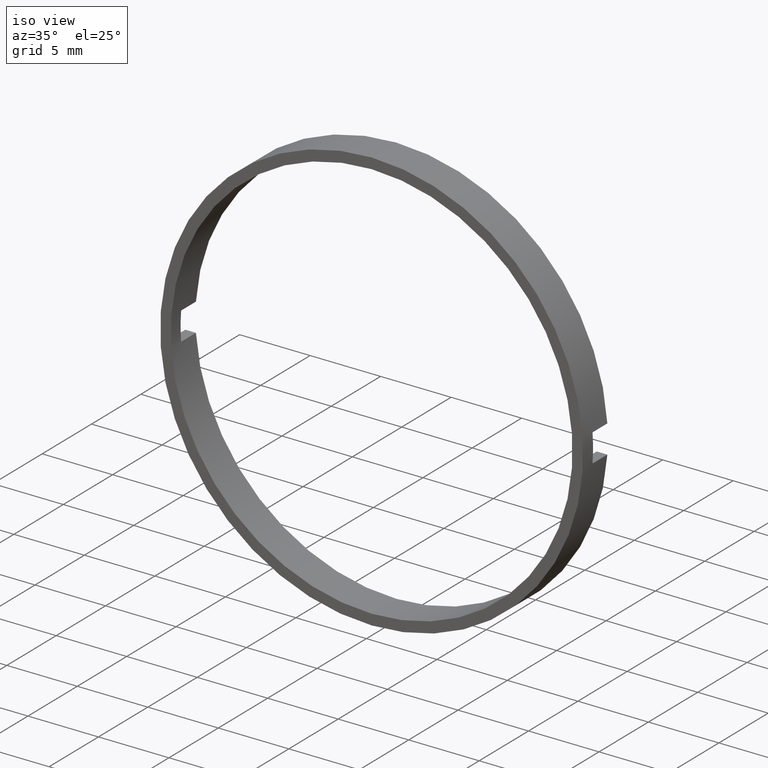
[diagram: clean part render]
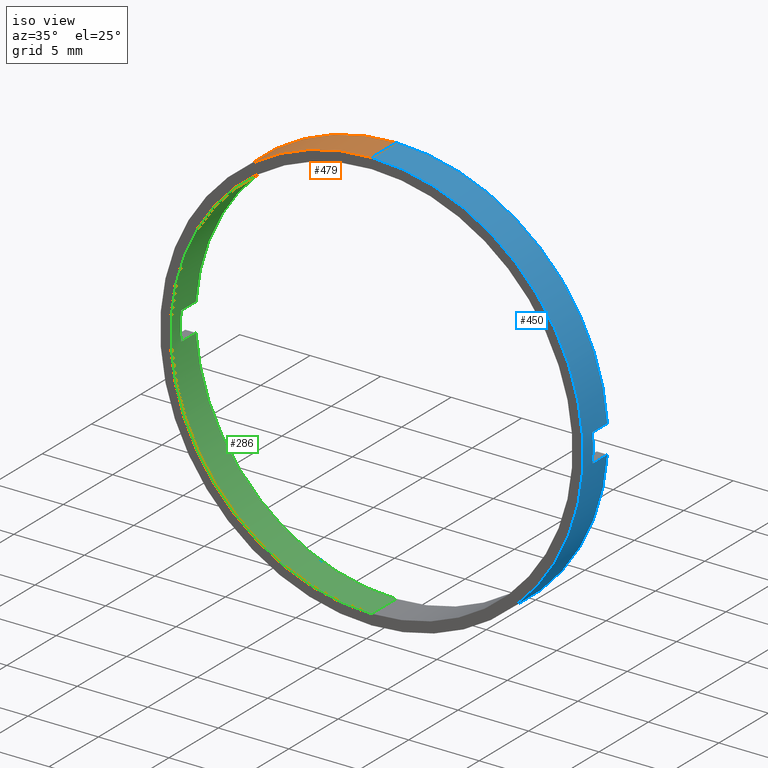
[diagram: same view with three faces highlighted in distinct colors, each labeled with its STEP entity id]
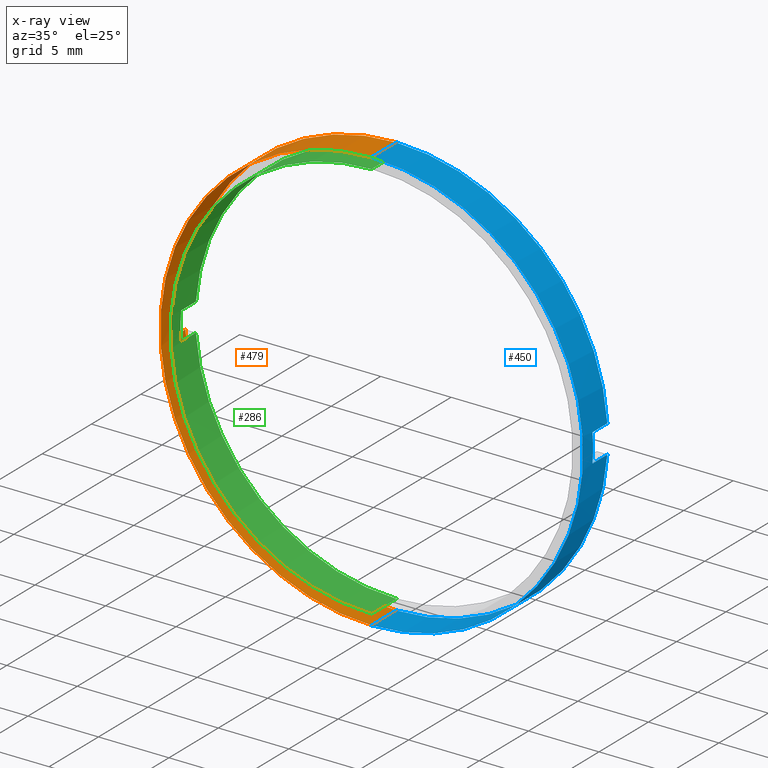
[diagram: x-ray of the same camera — body ghosted, the three highlighted faces saturated]
A machine part, iso view with three faces highlighted in distinct colors.
The next image is the same camera in x-ray (body ghosted, the three faces saturated) — at least one of them is partly hidden behind the body in this view.
Their STEP definitions:

[orange] entity #479 — the highlighted cylindrical surface (partial cylindrical patch) has radius 15 mm, axis along (-0, 1, -0).
#1 = EDGE_CURVE ( 'NONE', #409, #463, #205, .T. ) ;
#2 = AXIS2_PLACEMENT_3D ( 'NONE', #132, #398, #504 ) ;
#37 = CARTESIAN_POINT ( 'NONE',  ( -14.96662954709577100, -3.464249787179428400, -0.9999999999999995600 ) ) ;
#56 = EDGE_CURVE ( 'NONE', #365, #308, #433, .T. ) ;
#64 = DIRECTION ( 'NONE',  ( -0.0000000000000000000, 1.000000000000000000, -0.0000000000000000000 ) ) ;
#74 = ORIENTED_EDGE ( 'NONE', *, *, #110, .F. ) ;
#83 = ORIENTED_EDGE ( 'NONE', *, *, #301, .F. ) ;
#87 = DIRECTION ( 'NONE',  ( 0.0000000000000000000, -1.000000000000000000, 0.0000000000000000000 ) ) ;
#105 = DIRECTION ( 'NONE',  ( 0.0000000000000000000, 0.0000000000000000000, 1.000000000000000000 ) ) ;
#109 = DIRECTION ( 'NONE',  ( -0.0000000000000000000, 1.000000000000000000, -0.0000000000000000000 ) ) ;
#110 = EDGE_CURVE ( 'NONE', #339, #454, #143, .T. ) ;
#118 = LINE ( 'NONE', #208, #417 ) ;
#132 = CARTESIAN_POINT ( 'NONE',  ( 0.0000000000000000000, -4.464249787179428900, 0.0000000000000000000 ) ) ;
#140 = CARTESIAN_POINT ( 'NONE',  ( 0.0000000000000000000, -1.964249787179434000, 15.00000000000000700 ) ) ;
#143 = CIRCLE ( 'NONE', #419, 15.00000000000000700 ) ;
#146 = DIRECTION ( 'NONE',  ( -0.0000000000000000000, 1.000000000000000000, -0.0000000000000000000 ) ) ;
#153 = CARTESIAN_POINT ( 'NONE',  ( 1.836970198721030800E-015, 56.26084262701361600, -15.00000000000000700 ) ) ;
#157 = VERTEX_POINT ( 'NONE', #309 ) ;
#160 = CIRCLE ( 'NONE', #271, 15.00000000000000700 ) ;
#161 = EDGE_CURVE ( 'NONE', #365, #454, #341, .T. ) ;
#163 = DIRECTION ( 'NONE',  ( 0.0000000000000000000, 0.0000000000000000000, 1.000000000000000000 ) ) ;
#192 = EDGE_CURVE ( 'NONE', #339, #498, #202, .T. ) ;
#199 = VECTOR ( 'NONE', #109, 1000.000000000000000 ) ;
#201 = CARTESIAN_POINT ( 'NONE',  ( 0.0000000000000000000, -3.464249787179428400, 0.0000000000000000000 ) ) ;
#202 = LINE ( 'NONE', #373, #231 ) ;
#205 = CIRCLE ( 'NONE', #2, 15.00000000000000700 ) ;
#207 = CARTESIAN_POINT ( 'NONE',  ( -14.96662954709577100, -3.464249787179428400, 0.9999999999999995600 ) ) ;
#208 = CARTESIAN_POINT ( 'NONE',  ( 0.0000000000000000000, 56.26084262701361600, 15.00000000000000700 ) ) ;
#210 = CARTESIAN_POINT ( 'NONE',  ( -14.96662954709577600, -1.964249787179430900, -1.000000000000000000 ) ) ;
#213 = DIRECTION ( 'NONE',  ( -0.0000000000000000000, 1.000000000000000000, -0.0000000000000000000 ) ) ;
#231 = VECTOR ( 'NONE', #64, 1000.000000000000000 ) ;
#246 = DIRECTION ( 'NONE',  ( 0.0000000000000000000, 0.0000000000000000000, 1.000000000000000000 ) ) ;
#249 = DIRECTION ( 'NONE',  ( -0.0000000000000000000, 1.000000000000000000, -0.0000000000000000000 ) ) ;
#251 = CARTESIAN_POINT ( 'NONE',  ( 1.836970198721030800E-015, -4.464249787179428900, -15.00000000000000700 ) ) ;
#269 = CYLINDRICAL_SURFACE ( 'NONE', #331, 15.00000000000000700 ) ;
#271 = AXIS2_PLACEMENT_3D ( 'NONE', #323, #146, #105 ) ;
#273 = CARTESIAN_POINT ( 'NONE',  ( 0.0000000000000000000, -1.964249787179434000, 0.0000000000000000000 ) ) ;
#298 = ORIENTED_EDGE ( 'NONE', *, *, #386, .T. ) ;
#300 = EDGE_LOOP ( 'NONE', ( #304, #429, #298, #393, #383, #74, #506, #83 ) ) ;
#301 = EDGE_CURVE ( 'NONE', #157, #498, #160, .T. ) ;
#304 = ORIENTED_EDGE ( 'NONE', *, *, #382, .F. ) ;
#307 = DIRECTION ( 'NONE',  ( 0.0000000000000000000, 0.0000000000000000000, 1.000000000000000000 ) ) ;
#308 = VERTEX_POINT ( 'NONE', #140 ) ;
#309 = CARTESIAN_POINT ( 'NONE',  ( 1.836970198721030800E-015, -1.964249787179434000, -15.00000000000000700 ) ) ;
#320 = LINE ( 'NONE', #153, #199 ) ;
#323 = CARTESIAN_POINT ( 'NONE',  ( 0.0000000000000000000, -1.964249787179434000, 0.0000000000000000000 ) ) ;
#331 = AXIS2_PLACEMENT_3D ( 'NONE', #397, #249, #246 ) ;
#339 = VERTEX_POINT ( 'NONE', #37 ) ;
#341 = LINE ( 'NONE', #437, #464 ) ;
#365 = VERTEX_POINT ( 'NONE', #499 ) ;
#373 = CARTESIAN_POINT ( 'NONE',  ( -14.96662954709577200, 56.26084262701361600, -1.000000000000000000 ) ) ;
#382 = EDGE_CURVE ( 'NONE', #409, #157, #320, .T. ) ;
#383 = ORIENTED_EDGE ( 'NONE', *, *, #161, .T. ) ;
#386 = EDGE_CURVE ( 'NONE', #463, #308, #118, .T. ) ;
#392 = DIRECTION ( 'NONE',  ( 0.0000000000000000000, 1.000000000000000000, 0.0000000000000000000 ) ) ;
#393 = ORIENTED_EDGE ( 'NONE', *, *, #56, .F. ) ;
#394 = FACE_OUTER_BOUND ( 'NONE', #300, .T. ) ;
#397 = CARTESIAN_POINT ( 'NONE',  ( 0.0000000000000000000, 56.26084262701361600, 0.0000000000000000000 ) ) ;
#398 = DIRECTION ( 'NONE',  ( -0.0000000000000000000, 1.000000000000000000, -0.0000000000000000000 ) ) ;
#401 = CARTESIAN_POINT ( 'NONE',  ( 0.0000000000000000000, -4.464249787179428900, 15.00000000000000700 ) ) ;
#409 = VERTEX_POINT ( 'NONE', #251 ) ;
#417 = VECTOR ( 'NONE', #213, 1000.000000000000000 ) ;
#419 = AXIS2_PLACEMENT_3D ( 'NONE', #201, #392, #307 ) ;
#429 = ORIENTED_EDGE ( 'NONE', *, *, #1, .T. ) ;
#431 = DIRECTION ( 'NONE',  ( -0.0000000000000000000, 1.000000000000000000, -0.0000000000000000000 ) ) ;
#433 = CIRCLE ( 'NONE', #461, 15.00000000000000700 ) ;
#437 = CARTESIAN_POINT ( 'NONE',  ( -14.96662954709577200, 56.26084262701361600, 1.000000000000000000 ) ) ;
#454 = VERTEX_POINT ( 'NONE', #207 ) ;
#461 = AXIS2_PLACEMENT_3D ( 'NONE', #273, #431, #163 ) ;
#463 = VERTEX_POINT ( 'NONE', #401 ) ;
#464 = VECTOR ( 'NONE', #87, 1000.000000000000000 ) ;
#479 = ADVANCED_FACE ( 'NONE', ( #394 ), #269, .T. ) ;
#498 = VERTEX_POINT ( 'NONE', #210 ) ;
#499 = CARTESIAN_POINT ( 'NONE',  ( -14.96662954709577600, -1.964249787179430900, 1.000000000000000000 ) ) ;
#504 = DIRECTION ( 'NONE',  ( 0.0000000000000000000, 0.0000000000000000000, 1.000000000000000000 ) ) ;
#506 = ORIENTED_EDGE ( 'NONE', *, *, #192, .T. ) ;

[blue] entity #450 — the highlighted cylindrical surface (partial cylindrical patch) has radius 15 mm, axis along (-0, 1, -0).
#11 = CARTESIAN_POINT ( 'NONE',  ( 14.96662954709577200, 56.26084262701361600, 1.000000000000000000 ) ) ;
#23 = VERTEX_POINT ( 'NONE', #315 ) ;
#25 = DIRECTION ( 'NONE',  ( 0.0000000000000000000, 1.000000000000000000, 0.0000000000000000000 ) ) ;
#26 = VECTOR ( 'NONE', #280, 1000.000000000000000 ) ;
#34 = EDGE_CURVE ( 'NONE', #463, #409, #164, .T. ) ;
#44 = CIRCLE ( 'NONE', #57, 15.00000000000000700 ) ;
#52 = DIRECTION ( 'NONE',  ( 0.0000000000000000000, 0.0000000000000000000, 1.000000000000000000 ) ) ;
#57 = AXIS2_PLACEMENT_3D ( 'NONE', #334, #359, #52 ) ;
#65 = DIRECTION ( 'NONE',  ( 0.0000000000000000000, 0.0000000000000000000, 1.000000000000000000 ) ) ;
#79 = AXIS2_PLACEMENT_3D ( 'NONE', #268, #25, #65 ) ;
#85 = ORIENTED_EDGE ( 'NONE', *, *, #159, .T. ) ;
#95 = DIRECTION ( 'NONE',  ( 0.0000000000000000000, 0.0000000000000000000, 1.000000000000000000 ) ) ;
#102 = CARTESIAN_POINT ( 'NONE',  ( 14.96662954709577200, 56.26084262701361600, -1.000000000000000000 ) ) ;
#109 = DIRECTION ( 'NONE',  ( -0.0000000000000000000, 1.000000000000000000, -0.0000000000000000000 ) ) ;
#118 = LINE ( 'NONE', #208, #417 ) ;
#140 = CARTESIAN_POINT ( 'NONE',  ( 0.0000000000000000000, -1.964249787179434000, 15.00000000000000700 ) ) ;
#153 = CARTESIAN_POINT ( 'NONE',  ( 1.836970198721030800E-015, 56.26084262701361600, -15.00000000000000700 ) ) ;
#157 = VERTEX_POINT ( 'NONE', #309 ) ;
#159 = EDGE_CURVE ( 'NONE', #318, #203, #183, .T. ) ;
#164 = CIRCLE ( 'NONE', #224, 15.00000000000000700 ) ;
#178 = EDGE_CURVE ( 'NONE', #318, #209, #381, .T. ) ;
#180 = ORIENTED_EDGE ( 'NONE', *, *, #216, .T. ) ;
#183 = LINE ( 'NONE', #11, #26 ) ;
#184 = CARTESIAN_POINT ( 'NONE',  ( 14.96662954709577100, -3.464249787179428400, -0.9999999999999995600 ) ) ;
#191 = DIRECTION ( 'NONE',  ( 0.0000000000000000000, 0.0000000000000000000, 1.000000000000000000 ) ) ;
#199 = VECTOR ( 'NONE', #109, 1000.000000000000000 ) ;
#203 = VERTEX_POINT ( 'NONE', #332 ) ;
#208 = CARTESIAN_POINT ( 'NONE',  ( 0.0000000000000000000, 56.26084262701361600, 15.00000000000000700 ) ) ;
#209 = VERTEX_POINT ( 'NONE', #184 ) ;
#213 = DIRECTION ( 'NONE',  ( -0.0000000000000000000, 1.000000000000000000, -0.0000000000000000000 ) ) ;
#216 = EDGE_CURVE ( 'NONE', #23, #209, #500, .T. ) ;
#224 = AXIS2_PLACEMENT_3D ( 'NONE', #238, #236, #241 ) ;
#236 = DIRECTION ( 'NONE',  ( -0.0000000000000000000, 1.000000000000000000, -0.0000000000000000000 ) ) ;
#238 = CARTESIAN_POINT ( 'NONE',  ( 0.0000000000000000000, -4.464249787179428900, 0.0000000000000000000 ) ) ;
#241 = DIRECTION ( 'NONE',  ( 0.0000000000000000000, 0.0000000000000000000, 1.000000000000000000 ) ) ;
#251 = CARTESIAN_POINT ( 'NONE',  ( 1.836970198721030800E-015, -4.464249787179428900, -15.00000000000000700 ) ) ;
#252 = AXIS2_PLACEMENT_3D ( 'NONE', #403, #311, #95 ) ;
#268 = CARTESIAN_POINT ( 'NONE',  ( 0.0000000000000000000, -3.464249787179428400, 0.0000000000000000000 ) ) ;
#278 = CYLINDRICAL_SURFACE ( 'NONE', #252, 15.00000000000000700 ) ;
#280 = DIRECTION ( 'NONE',  ( -0.0000000000000000000, 1.000000000000000000, -0.0000000000000000000 ) ) ;
#297 = CARTESIAN_POINT ( 'NONE',  ( 0.0000000000000000000, -1.964249787179434000, 0.0000000000000000000 ) ) ;
#308 = VERTEX_POINT ( 'NONE', #140 ) ;
#309 = CARTESIAN_POINT ( 'NONE',  ( 1.836970198721030800E-015, -1.964249787179434000, -15.00000000000000700 ) ) ;
#311 = DIRECTION ( 'NONE',  ( -0.0000000000000000000, 1.000000000000000000, -0.0000000000000000000 ) ) ;
#314 = ORIENTED_EDGE ( 'NONE', *, *, #34, .T. ) ;
#315 = CARTESIAN_POINT ( 'NONE',  ( 14.96662954709576000, -1.964249787179430900, -1.000000000000000000 ) ) ;
#318 = VERTEX_POINT ( 'NONE', #462 ) ;
#320 = LINE ( 'NONE', #153, #199 ) ;
#324 = ORIENTED_EDGE ( 'NONE', *, *, #372, .F. ) ;
#332 = CARTESIAN_POINT ( 'NONE',  ( 14.96662954709576000, -1.964249787179430900, 1.000000000000000000 ) ) ;
#334 = CARTESIAN_POINT ( 'NONE',  ( 0.0000000000000000000, -1.964249787179434000, 0.0000000000000000000 ) ) ;
#348 = EDGE_CURVE ( 'NONE', #308, #203, #374, .T. ) ;
#359 = DIRECTION ( 'NONE',  ( -0.0000000000000000000, 1.000000000000000000, -0.0000000000000000000 ) ) ;
#362 = AXIS2_PLACEMENT_3D ( 'NONE', #297, #497, #191 ) ;
#366 = ORIENTED_EDGE ( 'NONE', *, *, #178, .F. ) ;
#372 = EDGE_CURVE ( 'NONE', #23, #157, #44, .T. ) ;
#374 = CIRCLE ( 'NONE', #362, 15.00000000000000700 ) ;
#381 = CIRCLE ( 'NONE', #79, 15.00000000000000700 ) ;
#382 = EDGE_CURVE ( 'NONE', #409, #157, #320, .T. ) ;
#386 = EDGE_CURVE ( 'NONE', #463, #308, #118, .T. ) ;
#391 = ORIENTED_EDGE ( 'NONE', *, *, #386, .F. ) ;
#401 = CARTESIAN_POINT ( 'NONE',  ( 0.0000000000000000000, -4.464249787179428900, 15.00000000000000700 ) ) ;
#403 = CARTESIAN_POINT ( 'NONE',  ( 0.0000000000000000000, 56.26084262701361600, 0.0000000000000000000 ) ) ;
#409 = VERTEX_POINT ( 'NONE', #251 ) ;
#417 = VECTOR ( 'NONE', #213, 1000.000000000000000 ) ;
#450 = ADVANCED_FACE ( 'NONE', ( #458 ), #278, .T. ) ;
#456 = DIRECTION ( 'NONE',  ( 0.0000000000000000000, -1.000000000000000000, 0.0000000000000000000 ) ) ;
#458 = FACE_OUTER_BOUND ( 'NONE', #468, .T. ) ;
#462 = CARTESIAN_POINT ( 'NONE',  ( 14.96662954709577100, -3.464249787179428400, 0.9999999999999995600 ) ) ;
#463 = VERTEX_POINT ( 'NONE', #401 ) ;
#468 = EDGE_LOOP ( 'NONE', ( #314, #492, #324, #180, #366, #85, #473, #391 ) ) ;
#470 = VECTOR ( 'NONE', #456, 1000.000000000000000 ) ;
#473 = ORIENTED_EDGE ( 'NONE', *, *, #348, .F. ) ;
#492 = ORIENTED_EDGE ( 'NONE', *, *, #382, .T. ) ;
#497 = DIRECTION ( 'NONE',  ( -0.0000000000000000000, 1.000000000000000000, -0.0000000000000000000 ) ) ;
#500 = LINE ( 'NONE', #102, #470 ) ;

[green] entity #286 — the highlighted cylindrical surface (partial cylindrical patch) has radius 14.25 mm, axis along (-0, 1, -0).
#5 = EDGE_LOOP ( 'NONE', ( #47, #425, #215, #98, #258, #400, #200, #352 ) ) ;
#10 = CIRCLE ( 'NONE', #138, 14.25000000000000700 ) ;
#29 = VERTEX_POINT ( 'NONE', #399 ) ;
#31 = EDGE_CURVE ( 'NONE', #291, #50, #198, .T. ) ;
#35 = AXIS2_PLACEMENT_3D ( 'NONE', #459, #264, #149 ) ;
#45 = DIRECTION ( 'NONE',  ( 0.0000000000000000000, 0.0000000000000000000, 1.000000000000000000 ) ) ;
#47 = ORIENTED_EDGE ( 'NONE', *, *, #380, .F. ) ;
#50 = VERTEX_POINT ( 'NONE', #51 ) ;
#51 = CARTESIAN_POINT ( 'NONE',  ( 0.0000000000000000000, -1.964249787179434000, 14.25000000000000700 ) ) ;
#75 = EDGE_CURVE ( 'NONE', #379, #291, #256, .T. ) ;
#76 = FACE_OUTER_BOUND ( 'NONE', #5, .T. ) ;
#82 = LINE ( 'NONE', #166, #196 ) ;
#86 = EDGE_CURVE ( 'NONE', #379, #152, #10, .T. ) ;
#91 = DIRECTION ( 'NONE',  ( -0.0000000000000000000, 1.000000000000000000, -0.0000000000000000000 ) ) ;
#98 = ORIENTED_EDGE ( 'NONE', *, *, #190, .T. ) ;
#99 = DIRECTION ( 'NONE',  ( -0.0000000000000000000, 1.000000000000000000, -0.0000000000000000000 ) ) ;
#103 = CARTESIAN_POINT ( 'NONE',  ( 0.0000000000000000000, 56.26084262701361600, 0.0000000000000000000 ) ) ;
#107 = CARTESIAN_POINT ( 'NONE',  ( -14.21486897582950500, 56.26084262701361600, -1.000000000000000000 ) ) ;
#108 = VERTEX_POINT ( 'NONE', #276 ) ;
#117 = AXIS2_PLACEMENT_3D ( 'NONE', #283, #91, #441 ) ;
#123 = VECTOR ( 'NONE', #435, 1000.000000000000000 ) ;
#131 = EDGE_CURVE ( 'NONE', #194, #50, #82, .T. ) ;
#133 = DIRECTION ( 'NONE',  ( -0.0000000000000000000, 1.000000000000000000, -0.0000000000000000000 ) ) ;
#136 = DIRECTION ( 'NONE',  ( 0.0000000000000000000, 0.0000000000000000000, 1.000000000000000000 ) ) ;
#138 = AXIS2_PLACEMENT_3D ( 'NONE', #475, #274, #45 ) ;
#144 = DIRECTION ( 'NONE',  ( 0.0000000000000000000, 0.0000000000000000000, 1.000000000000000000 ) ) ;
#149 = DIRECTION ( 'NONE',  ( 0.0000000000000000000, 0.0000000000000000000, 1.000000000000000000 ) ) ;
#152 = VERTEX_POINT ( 'NONE', #350 ) ;
#162 = VERTEX_POINT ( 'NONE', #306 ) ;
#166 = CARTESIAN_POINT ( 'NONE',  ( 0.0000000000000000000, 56.26084262701361600, 14.25000000000000700 ) ) ;
#170 = CARTESIAN_POINT ( 'NONE',  ( 0.0000000000000000000, -4.464249787179428900, 0.0000000000000000000 ) ) ;
#171 = CIRCLE ( 'NONE', #35, 14.25000000000000700 ) ;
#188 = CARTESIAN_POINT ( 'NONE',  ( 0.0000000000000000000, -4.464249787179428900, 14.25000000000000700 ) ) ;
#189 = CYLINDRICAL_SURFACE ( 'NONE', #245, 14.25000000000000700 ) ;
#190 = EDGE_CURVE ( 'NONE', #29, #152, #436, .T. ) ;
#194 = VERTEX_POINT ( 'NONE', #188 ) ;
#196 = VECTOR ( 'NONE', #396, 1000.000000000000000 ) ;
#198 = CIRCLE ( 'NONE', #117, 14.25000000000000700 ) ;
#200 = ORIENTED_EDGE ( 'NONE', *, *, #31, .T. ) ;
#215 = ORIENTED_EDGE ( 'NONE', *, *, #322, .T. ) ;
#227 = EDGE_CURVE ( 'NONE', #108, #162, #423, .T. ) ;
#245 = AXIS2_PLACEMENT_3D ( 'NONE', #103, #491, #144 ) ;
#256 = LINE ( 'NONE', #471, #123 ) ;
#258 = ORIENTED_EDGE ( 'NONE', *, *, #86, .F. ) ;
#264 = DIRECTION ( 'NONE',  ( -0.0000000000000000000, 1.000000000000000000, -0.0000000000000000000 ) ) ;
#274 = DIRECTION ( 'NONE',  ( -0.0000000000000000000, -1.000000000000000000, -0.0000000000000000000 ) ) ;
#276 = CARTESIAN_POINT ( 'NONE',  ( 1.745121688784979000E-015, -4.464249787179428900, -14.25000000000000700 ) ) ;
#283 = CARTESIAN_POINT ( 'NONE',  ( 0.0000000000000000000, -1.964249787179434000, 0.0000000000000000000 ) ) ;
#286 = ADVANCED_FACE ( 'NONE', ( #76 ), #189, .F. ) ;
#289 = CARTESIAN_POINT ( 'NONE',  ( -14.21486897582950300, -1.964249787179434000, 0.9999999999999995600 ) ) ;
#290 = DIRECTION ( 'NONE',  ( 0.0000000000000000000, -1.000000000000000000, 0.0000000000000000000 ) ) ;
#291 = VERTEX_POINT ( 'NONE', #289 ) ;
#306 = CARTESIAN_POINT ( 'NONE',  ( 1.745121688784979000E-015, -1.964249787179434000, -14.25000000000000700 ) ) ;
#322 = EDGE_CURVE ( 'NONE', #162, #29, #171, .T. ) ;
#328 = VECTOR ( 'NONE', #290, 1000.000000000000000 ) ;
#350 = CARTESIAN_POINT ( 'NONE',  ( -14.21486897582950300, -3.464249787179428400, -0.9999999999999995600 ) ) ;
#352 = ORIENTED_EDGE ( 'NONE', *, *, #131, .F. ) ;
#375 = CARTESIAN_POINT ( 'NONE',  ( 1.745121688784979000E-015, 56.26084262701361600, -14.25000000000000700 ) ) ;
#379 = VERTEX_POINT ( 'NONE', #501 ) ;
#380 = EDGE_CURVE ( 'NONE', #108, #194, #466, .T. ) ;
#396 = DIRECTION ( 'NONE',  ( -0.0000000000000000000, 1.000000000000000000, -0.0000000000000000000 ) ) ;
#399 = CARTESIAN_POINT ( 'NONE',  ( -14.21486897582950300, -1.964249787179434000, -0.9999999999999995600 ) ) ;
#400 = ORIENTED_EDGE ( 'NONE', *, *, #75, .T. ) ;
#406 = VECTOR ( 'NONE', #99, 1000.000000000000000 ) ;
#423 = LINE ( 'NONE', #375, #406 ) ;
#425 = ORIENTED_EDGE ( 'NONE', *, *, #227, .T. ) ;
#435 = DIRECTION ( 'NONE',  ( -0.0000000000000000000, 1.000000000000000000, -0.0000000000000000000 ) ) ;
#436 = LINE ( 'NONE', #107, #328 ) ;
#441 = DIRECTION ( 'NONE',  ( 0.0000000000000000000, 0.0000000000000000000, 1.000000000000000000 ) ) ;
#459 = CARTESIAN_POINT ( 'NONE',  ( 0.0000000000000000000, -1.964249787179434000, 0.0000000000000000000 ) ) ;
#466 = CIRCLE ( 'NONE', #472, 14.25000000000000700 ) ;
#471 = CARTESIAN_POINT ( 'NONE',  ( -14.21486897582950500, 56.26084262701361600, 1.000000000000000000 ) ) ;
#472 = AXIS2_PLACEMENT_3D ( 'NONE', #170, #133, #136 ) ;
#475 = CARTESIAN_POINT ( 'NONE',  ( 0.0000000000000000000, -3.464249787179428400, 0.0000000000000000000 ) ) ;
#491 = DIRECTION ( 'NONE',  ( -0.0000000000000000000, 1.000000000000000000, -0.0000000000000000000 ) ) ;
#501 = CARTESIAN_POINT ( 'NONE',  ( -14.21486897582950300, -3.464249787179428400, 0.9999999999999995600 ) ) ;